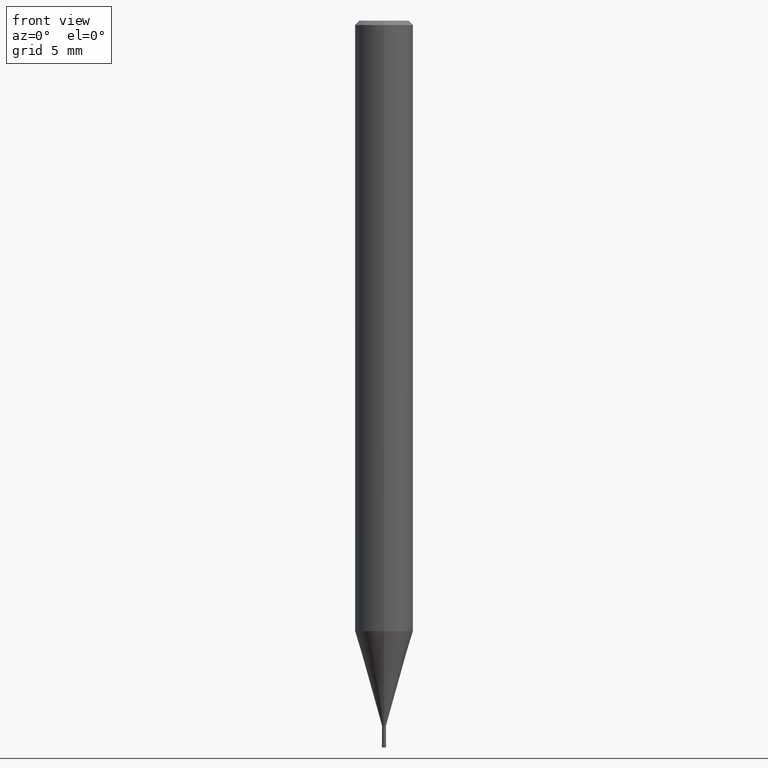
[diagram: clean part render]
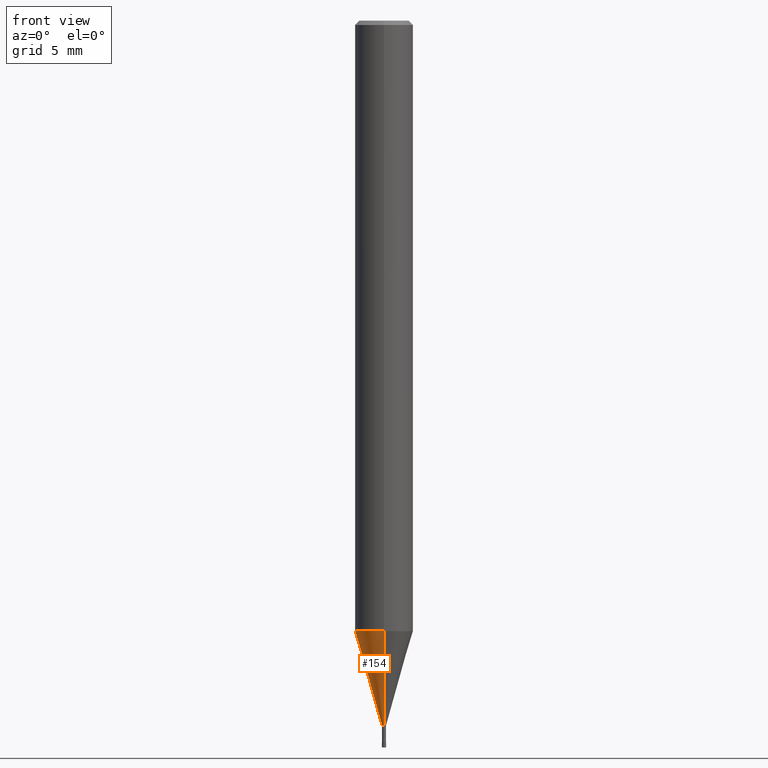
[diagram: same view with one face highlighted and labeled with its STEP entity id]
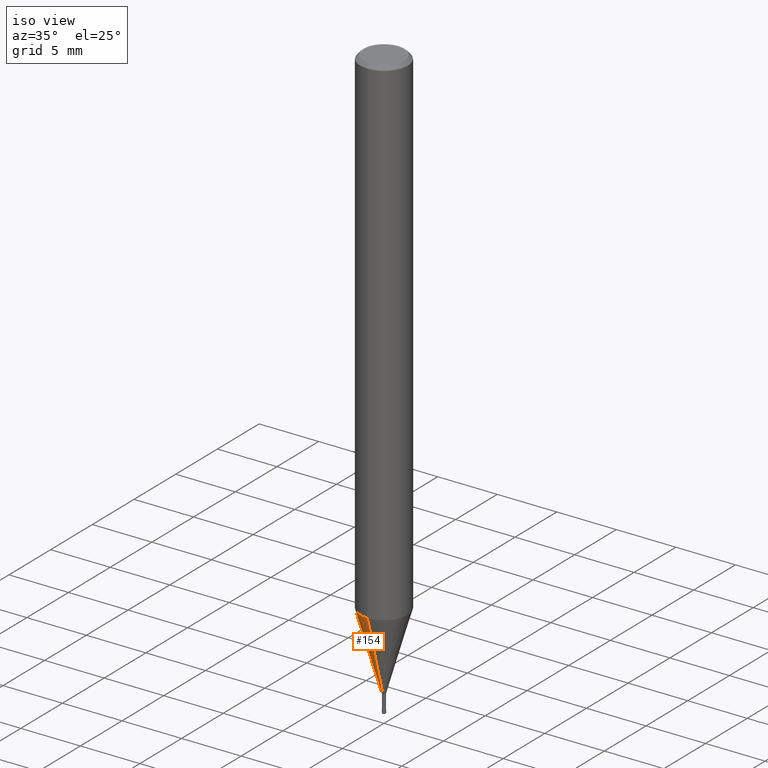
[diagram: same view with one face highlighted and labeled with its STEP entity id]
A machine part, front view. The second image highlights one B-rep face of the part: STEP entity #154.
A second angle (iso view) of the same face is appended — the face is thin or edge-on in the first view.
In plain terms, the highlighted conical surface has half-angle 16 deg.
Its self-contained STEP definition (entity closure, byte-faithful):
#128=VERTEX_POINT('',#287);
#130=EDGE_CURVE('',#128,#198,#289,.T.);
#148=VERTEX_POINT('',#308);
#154=ADVANCED_FACE('',(#314),#315,.T.);
#156=EDGE_CURVE('',#188,#148,#317,.T.);
#188=VERTEX_POINT('',#354);
#198=VERTEX_POINT('',#364);
#216=EDGE_CURVE('',#198,#188,#387,.T.);
#218=EDGE_CURVE('',#128,#148,#389,.T.);
#287=CARTESIAN_POINT('',(1.6526062744833E-017,-0.13495,-48.5));
#289=LINE('',#461,#462);
#308=CARTESIAN_POINT('',(0.0,0.13495,-48.5));
#314=FACE_OUTER_BOUND('',#495,.T.);
#315=CONICAL_SURFACE('',#496,1.06745,0.279253818445948);
#317=LINE('',#499,#500);
#354=CARTESIAN_POINT('',(0.0,1.99995,-41.996));
#364=CARTESIAN_POINT('',(2.44915147732706E-016,-1.99995,-41.996));
#387=CIRCLE('',#580,1.99995);
#389=CIRCLE('',#583,0.13495);
#461=CARTESIAN_POINT('',(1.3072060523877E-016,-1.06745,-45.248));
#462=VECTOR('',#663,1.0);
#495=EDGE_LOOP('',(#687,#688,#689,#690));
#496=AXIS2_PLACEMENT_3D('',#691,#692,#693);
#499=CARTESIAN_POINT('',(-1.3072060523877E-016,1.06745,-45.248));
#500=VECTOR('',#694,1.0);
#580=AXIS2_PLACEMENT_3D('',#789,#790,#791);
#583=AXIS2_PLACEMENT_3D('',#792,#793,#794);
#663=DIRECTION('',(3.3754859704966E-017,-0.275638449854572,0.961261382227419));
#687=ORIENTED_EDGE('',*,*,#156,.T.);
#688=ORIENTED_EDGE('',*,*,#218,.F.);
#689=ORIENTED_EDGE('',*,*,#130,.T.);
#690=ORIENTED_EDGE('',*,*,#216,.T.);
#691=CARTESIAN_POINT('',(0.0,0.0,-45.248));
#692=DIRECTION('',(-0.0,-0.0,1.0));
#693=DIRECTION('',(0.0,1.0,0.0));
#694=DIRECTION('',(3.3754859704966E-017,-0.275638449854572,-0.961261382227419));
#789=CARTESIAN_POINT('',(0.0,0.0,-41.996));
#790=DIRECTION('',(0.0,0.0,-1.0));
#791=DIRECTION('',(0.0,1.0,0.0));
#792=CARTESIAN_POINT('',(0.0,0.0,-48.5));
#793=DIRECTION('',(0.0,0.0,-1.0));
#794=DIRECTION('',(0.0,1.0,0.0));